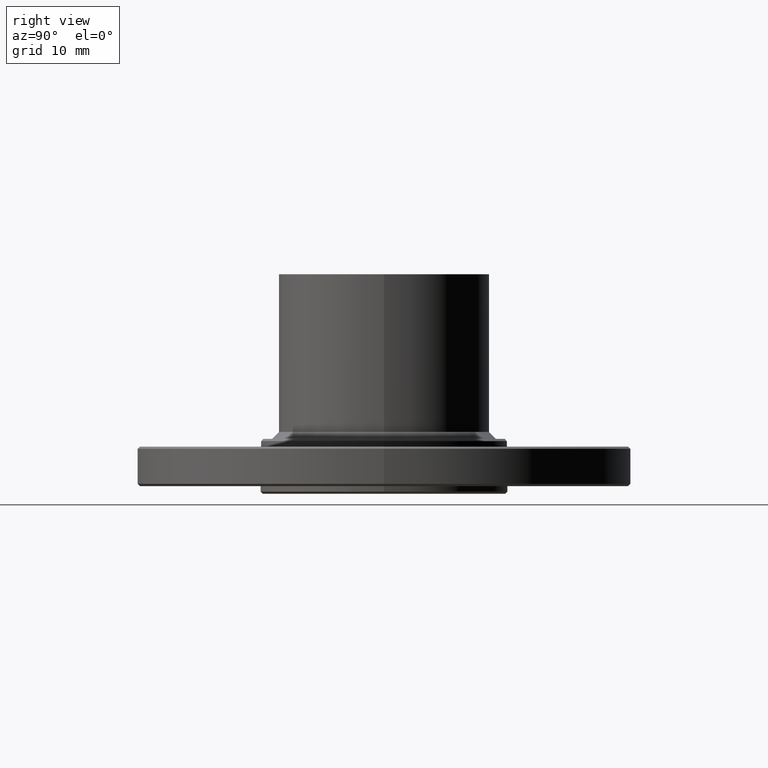
[diagram: clean part render]
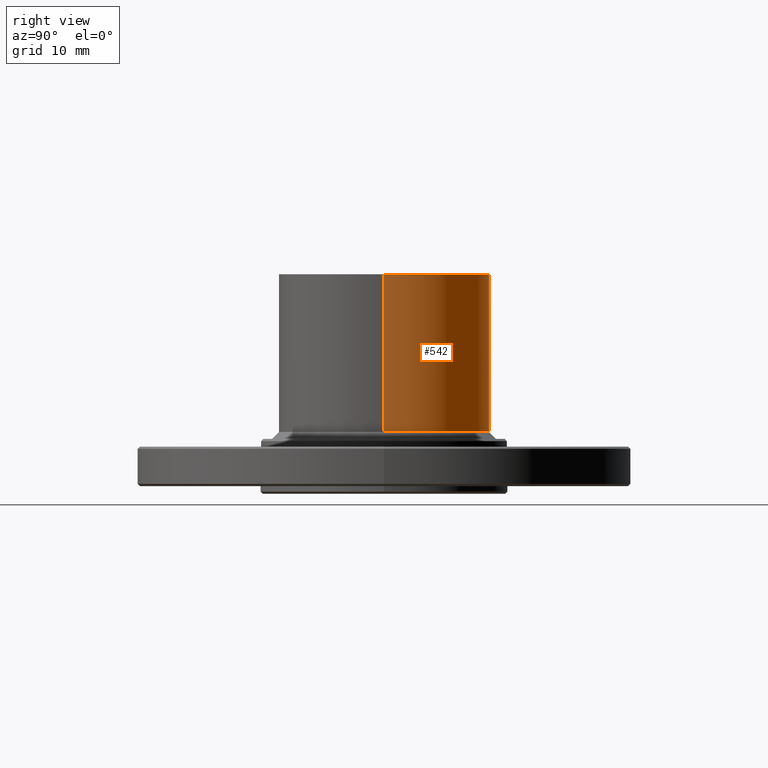
[diagram: same view with one face highlighted and labeled with its STEP entity id]
A machine part, right view. The second image highlights one B-rep face of the part: STEP entity #542.
In plain terms, the highlighted cylindrical surface (partial cylindrical patch) has radius 12.1412 mm, axis along (0, 0, -1).
Its self-contained STEP definition (entity closure, byte-faithful):
#31 = ORIENTED_EDGE ( 'NONE', *, *, #35, .F. ) ;
#35 = EDGE_CURVE ( 'NONE', #382, #141, #961, .T. ) ;
#96 = DIRECTION ( 'NONE',  ( 0.0000000000000000000, 0.0000000000000000000, 1.000000000000000000 ) ) ;
#121 = DIRECTION ( 'NONE',  ( 1.000000000000000000, 0.0000000000000000000, 0.0000000000000000000 ) ) ;
#132 = DIRECTION ( 'NONE',  ( 0.0000000000000000000, 0.0000000000000000000, 1.000000000000000000 ) ) ;
#136 = CARTESIAN_POINT ( 'NONE',  ( 0.0000000000000000000, 0.0000000000000000000, 0.2820000000000018000 ) ) ;
#141 = VERTEX_POINT ( 'NONE', #432 ) ;
#149 = EDGE_CURVE ( 'NONE', #918, #141, #294, .T. ) ;
#258 = DIRECTION ( 'NONE',  ( 0.0000000000000000000, 0.0000000000000000000, -1.000000000000000000 ) ) ;
#294 = CIRCLE ( 'NONE', #901, 0.4779999999999999800 ) ;
#382 = VERTEX_POINT ( 'NONE', #458 ) ;
#388 = CARTESIAN_POINT ( 'NONE',  ( 0.4779999999999999800, 5.853811699924347700E-017, 1.000000000000000000 ) ) ;
#432 = CARTESIAN_POINT ( 'NONE',  ( -0.4779999999999999800, 0.0000000000000000000, 0.2820000000000018000 ) ) ;
#443 = CIRCLE ( 'NONE', #858, 0.4779999999999999800 ) ;
#452 = EDGE_CURVE ( 'NONE', #753, #918, #699, .T. ) ;
#458 = CARTESIAN_POINT ( 'NONE',  ( -0.4779999999999999800, 0.0000000000000000000, 1.000000000000000000 ) ) ;
#542 = ADVANCED_FACE ( 'NONE', ( #1133 ), #1058, .T. ) ;
#547 = ORIENTED_EDGE ( 'NONE', *, *, #975, .F. ) ;
#645 = CARTESIAN_POINT ( 'NONE',  ( 0.0000000000000000000, 0.0000000000000000000, 1.000000000000000000 ) ) ;
#650 = DIRECTION ( 'NONE',  ( -1.000000000000000000, 0.0000000000000000000, 0.0000000000000000000 ) ) ;
#676 = CARTESIAN_POINT ( 'NONE',  ( 0.0000000000000000000, 0.0000000000000000000, 1.000000000000000000 ) ) ;
#699 = LINE ( 'NONE', #1121, #914 ) ;
#753 = VERTEX_POINT ( 'NONE', #388 ) ;
#771 = DIRECTION ( 'NONE',  ( 1.000000000000000000, 0.0000000000000000000, 0.0000000000000000000 ) ) ;
#795 = EDGE_LOOP ( 'NONE', ( #547, #1026, #1163, #31 ) ) ;
#858 = AXIS2_PLACEMENT_3D ( 'NONE', #676, #96, #771 ) ;
#894 = CARTESIAN_POINT ( 'NONE',  ( -0.4779999999999999800, 0.0000000000000000000, 1.000000000000000000 ) ) ;
#901 = AXIS2_PLACEMENT_3D ( 'NONE', #136, #132, #121 ) ;
#904 = DIRECTION ( 'NONE',  ( 0.0000000000000000000, 0.0000000000000000000, -1.000000000000000000 ) ) ;
#914 = VECTOR ( 'NONE', #1125, 39.37007874015748100 ) ;
#918 = VERTEX_POINT ( 'NONE', #1136 ) ;
#961 = LINE ( 'NONE', #894, #1166 ) ;
#975 = EDGE_CURVE ( 'NONE', #753, #382, #443, .T. ) ;
#1026 = ORIENTED_EDGE ( 'NONE', *, *, #452, .T. ) ;
#1058 = CYLINDRICAL_SURFACE ( 'NONE', #1137, 0.4779999999999999800 ) ;
#1121 = CARTESIAN_POINT ( 'NONE',  ( 0.4779999999999999800, 5.853811699924347700E-017, 1.000000000000000000 ) ) ;
#1125 = DIRECTION ( 'NONE',  ( 0.0000000000000000000, 0.0000000000000000000, -1.000000000000000000 ) ) ;
#1133 = FACE_OUTER_BOUND ( 'NONE', #795, .T. ) ;
#1136 = CARTESIAN_POINT ( 'NONE',  ( 0.4779999999999999800, 5.853811699924347700E-017, 0.2820000000000018000 ) ) ;
#1137 = AXIS2_PLACEMENT_3D ( 'NONE', #645, #258, #650 ) ;
#1163 = ORIENTED_EDGE ( 'NONE', *, *, #149, .T. ) ;
#1166 = VECTOR ( 'NONE', #904, 39.37007874015748100 ) ;